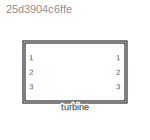
MODEL slx_25d3904c6ffe
KIND library
CONFIG AbsTol = auto
CONFIG EnableMultiTasking = off
CONFIG FixedStep = auto
CONFIG MaxStep = auto
CONFIG MinStep = auto
CONFIG RelTol = 1e-3
CONFIG SampleTimeConstraint = Unconstrained
CONFIG Solver = VariableStepAuto
CONFIG SolverName = VariableStepAuto
CONFIG StartTime = 0.0
CONFIG StopTime = 10.0
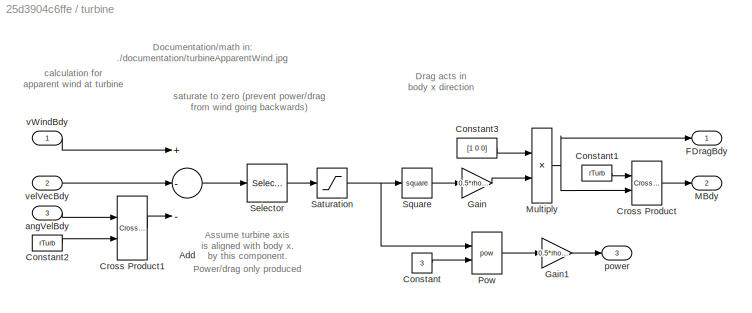
BLOCK [SubSystem] turbine
  Ports = [3, 3]
  RequestExecContextInheritance = off
BLOCK [Sum] turbine/Add
  InputSameDT = off
  Inputs = +--
  OutDataTypeStr = Inherit: Inherit via internal rule
  Ports = [3, 1]
  SaturateOnIntegerOverflow = off
BLOCK [Constant] turbine/Constant
  Value = 3
BLOCK [Constant] turbine/Constant1
  Value = rTurb
BLOCK [Constant] turbine/Constant2
  Value = rTurb
BLOCK [Constant] turbine/Constant3
  Value = [1 0 0]
BLOCK [Reference] turbine/Cross Product  REF=vrlib/Utilities/Cross Product
  Ports = [2, 1]
  SourceBlock = vrlib/Utilities/Cross Product
  SourceProductBaseCode = VR
  SourceProductName = Simulink 3D Animation
  SourceType = Cross Product
BLOCK [Reference] turbine/Cross Product1  REF=vrlib/Utilities/Cross Product
  Ports = [2, 1]
  SourceBlock = vrlib/Utilities/Cross Product
  SourceProductBaseCode = VR
  SourceProductName = Simulink 3D Animation
  SourceType = Cross Product
BLOCK [Outport] turbine/FDragBdy
  IconDisplay = Port number
BLOCK [Gain] turbine/Gain
  Gain = 0.5*rho*pi*(diam/2)^2*Cd
  OutDataTypeStr = Inherit: Inherit via internal rule
  ParamDataTypeStr = Inherit: Inherit via internal rule
  SaturateOnIntegerOverflow = off
BLOCK [Gain] turbine/Gain1
  Gain = 0.5*rho*pi*(diam/2)^2*Cp
  OutDataTypeStr = Inherit: Inherit via internal rule
  ParamDataTypeStr = Inherit: Inherit via internal rule
  SaturateOnIntegerOverflow = off
BLOCK [Outport] turbine/MBdy
  IconDisplay = Port number
  Port = 2
BLOCK [Product] turbine/Multiply
  InputSameDT = off
  OutDataTypeStr = Inherit: Inherit via internal rule
  Ports = [2, 1]
  RndMeth = Floor
  SaturateOnIntegerOverflow = off
BLOCK [Math] turbine/Pow
  Operator = pow
  Ports = [2, 1]
  RndMeth = Zero
BLOCK [Saturate] turbine/Saturation
  InputPortMap = u0
  LowerLimit = 0
  Ports = [1, 1]
  UpperLimit = inf
BLOCK [Selector] turbine/Selector
  IndexOptions = Index vector (dialog)
  Indices = 1
  InputPortWidth = 3
  OutputSizes = 1
  Ports = [1, 1]
BLOCK [Math] turbine/Square
  Operator = square
  Ports = [1, 1]
BLOCK [Inport] turbine/angVelBdy
  IconDisplay = Port number
  Port = 3
BLOCK [Outport] turbine/power
  IconDisplay = Port number
  Port = 3
BLOCK [Inport] turbine/vWindBdy
  IconDisplay = Port number
BLOCK [Inport] turbine/velVecBdy
  IconDisplay = Port number
  Port = 2
ANNOTATION turbine: Assume turbine axis is aligned with body x. Power/drag only produced by this component.
ANNOTATION turbine: Documentation/math in: ./documentation/turbineApparentWind.jpg
ANNOTATION turbine: Drag acts in body x direction
ANNOTATION turbine: calculation for apparent wind at turbine
ANNOTATION turbine: saturate to zero (prevent power/drag from wind going backwards)
LINE turbine/Add:1 -> turbine/Selector:1
LINE turbine/Constant1:1 -> turbine/Cross Product:1
LINE turbine/Constant2:1 -> turbine/Cross Product1:2
LINE turbine/Constant3:1 -> turbine/Multiply:1
LINE turbine/Constant:1 -> turbine/Pow:2
LINE turbine/Cross Product1:1 -> turbine/Add:3
LINE turbine/Cross Product:1 -> turbine/MBdy:1
LINE turbine/Gain1:1 -> turbine/power:1
LINE turbine/Gain:1 -> turbine/Multiply:2
NET turbine/Multiply:1 -> turbine/Cross Product:2, turbine/FDragBdy:1
LINE turbine/Pow:1 -> turbine/Gain1:1
NET turbine/Saturation:1 -> turbine/Pow:1, turbine/Square:1
LINE turbine/Selector:1 -> turbine/Saturation:1
LINE turbine/Square:1 -> turbine/Gain:1
LINE turbine/angVelBdy:1 -> turbine/Cross Product1:1
LINE turbine/vWindBdy:1 -> turbine/Add:1
LINE turbine/velVecBdy:1 -> turbine/Add:2
note: NET lines group one-source signal fan-out (src -> all destinations, sorted); 1:1 wires keep LINE
